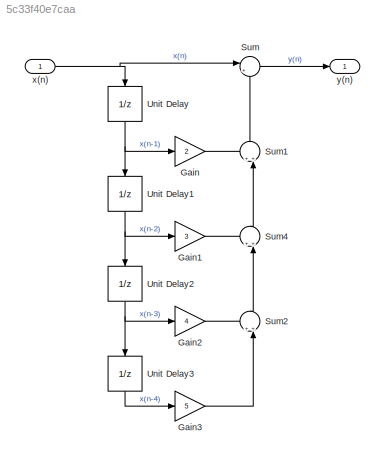
MODEL slx_5c33f40e7caa
KIND model
CONFIG AbsTol = auto
CONFIG EnableMultiTasking = off
CONFIG FixedStep = 0.2
CONFIG MaxStep = auto
CONFIG MinStep = auto
CONFIG RelTol = 1e-3
CONFIG SampleTimeConstraint = Unconstrained
CONFIG SolverName = FixedStepAuto
CONFIG StartTime = 0.0
CONFIG StopTime = 10.0
BLOCK [Gain] Gain
  Gain = 2
BLOCK [Gain] Gain1
  Gain = 3
BLOCK [Gain] Gain2
  Gain = 4
BLOCK [Gain] Gain3
  Gain = 5
BLOCK [Sum] Sum
  Inputs = |++
  Ports = [2, 1]
BLOCK [Sum] Sum1
  Inputs = ++|
  NameLocation = right
  Ports = [2, 1]
BLOCK [Sum] Sum2
  Inputs = ++|
  NameLocation = right
  Ports = [2, 1]
BLOCK [Sum] Sum4
  Inputs = ++|
  NameLocation = right
  Ports = [2, 1]
BLOCK [UnitDelay] Unit Delay
  HasFrameUpgradeWarning = on
  NameLocation = left
  SampleTime = -1
BLOCK [UnitDelay] Unit Delay1
  HasFrameUpgradeWarning = on
  NameLocation = left
  SampleTime = -1
BLOCK [UnitDelay] Unit Delay2
  HasFrameUpgradeWarning = on
  NameLocation = left
  SampleTime = -1
BLOCK [UnitDelay] Unit Delay3
  HasFrameUpgradeWarning = on
  NameLocation = left
  SampleTime = -1
BLOCK [Inport] x(n)
  OutDataTypeStr = double
  PortDimensions = 1
  SampleTime = [0.20000000000000001,0]
  SamplingMode = Sample based
  SignalType = real
BLOCK [Outport] y(n)
  OutDataTypeStr = double
  PortDimensions = 1
  SampleTime = [0.20000000000000001,0]
  SamplingMode = Sample based
  SignalType = real
LINE Gain1:1 -> Sum4:1
LINE Gain2:1 -> Sum2:1
LINE Gain3:1 -> Sum2:2
LINE Gain:1 -> Sum1:1
LINE Sum1:1 -> Sum:2
LINE Sum2:1 -> Sum4:2
LINE Sum4:1 -> Sum1:2
LINE Sum:1 -> y(n):1
NET Unit Delay1:1 -> Gain1:1, Unit Delay2:1
NET Unit Delay2:1 -> Gain2:1, Unit Delay3:1
LINE Unit Delay3:1 -> Gain3:1
NET Unit Delay:1 -> Gain:1, Unit Delay1:1
NET x(n):1 -> Sum:1, Unit Delay:1
note: NET lines group one-source signal fan-out (src -> all destinations, sorted); 1:1 wires keep LINE
